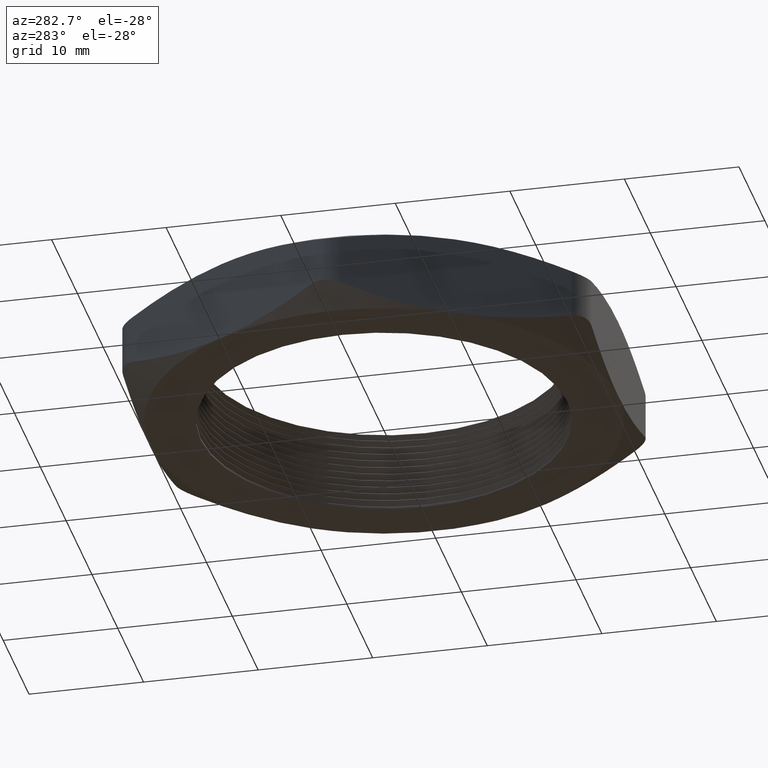
[diagram: clean part render]
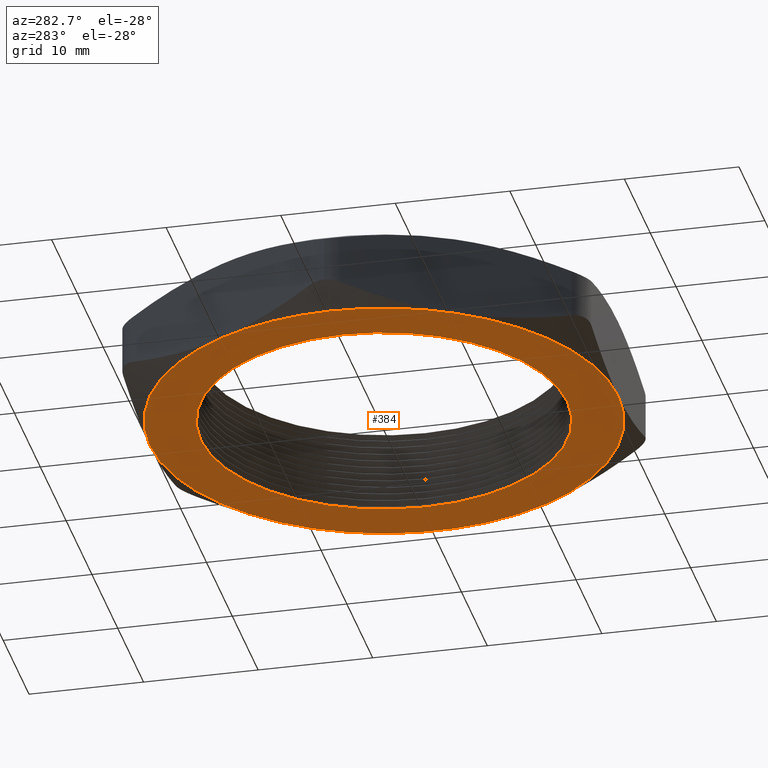
[diagram: same view with one face highlighted and labeled with its STEP entity id]
A machine part, auxiliary view. The second image highlights one B-rep face of the part: STEP entity #384.
In plain terms, the highlighted planar face has unit normal (0, 0, -1).
Its self-contained STEP definition (entity closure, byte-faithful):
#220 = DIRECTION ( 'NONE',  ( 0.0000000000000000000, 0.0000000000000000000, -1.000000000000000000 ) ) ;
#221 = CARTESIAN_POINT ( 'NONE',  ( 0.0000000000000000000, 0.0000000000000000000, 0.0000000000000000000 ) ) ;
#222 = AXIS2_PLACEMENT_3D ( 'NONE', #221, #220, #280 ) ;
#227 = CIRCLE ( 'NONE', #222, 0.8050000000000000500 ) ;
#268 = DIRECTION ( 'NONE',  ( -1.000000000000000000, 0.0000000000000000000, 0.0000000000000000000 ) ) ;
#269 = DIRECTION ( 'NONE',  ( 0.0000000000000000000, 0.0000000000000000000, -1.000000000000000000 ) ) ;
#270 = CARTESIAN_POINT ( 'NONE',  ( -0.4647669666976485500, 0.8050000000000002700, 0.0000000000000000000 ) ) ;
#271 = AXIS2_PLACEMENT_3D ( 'NONE', #270, #269, #268 ) ;
#272 = PLANE ( 'NONE',  #271 ) ;
#273 = FACE_OUTER_BOUND ( 'NONE', #379, .T. ) ;
#274 = FACE_BOUND ( 'NONE', #374, .T. ) ;
#280 = DIRECTION ( 'NONE',  ( -1.000000000000000000, 0.0000000000000000000, 0.0000000000000000000 ) ) ;
#289 = DIRECTION ( 'NONE',  ( -1.000000000000000000, 0.0000000000000000000, 0.0000000000000000000 ) ) ;
#290 = DIRECTION ( 'NONE',  ( 0.0000000000000000000, 0.0000000000000000000, -1.000000000000000000 ) ) ;
#291 = CARTESIAN_POINT ( 'NONE',  ( 0.0000000000000000000, 0.0000000000000000000, 0.0000000000000000000 ) ) ;
#292 = AXIS2_PLACEMENT_3D ( 'NONE', #291, #290, #289 ) ;
#293 = CIRCLE ( 'NONE', #292, 0.8050000000000001600 ) ;
#295 = DIRECTION ( 'NONE',  ( -1.000000000000000000, 0.0000000000000000000, 0.0000000000000000000 ) ) ;
#296 = DIRECTION ( 'NONE',  ( 0.0000000000000000000, 0.0000000000000000000, -1.000000000000000000 ) ) ;
#297 = AXIS2_PLACEMENT_3D ( 'NONE', #308, #296, #295 ) ;
#306 = CIRCLE ( 'NONE', #297, 0.8050000000000000500 ) ;
#308 = CARTESIAN_POINT ( 'NONE',  ( 0.0000000000000000000, 0.0000000000000000000, 0.0000000000000000000 ) ) ;
#330 = CARTESIAN_POINT ( 'NONE',  ( 1.182924880895401300E-016, 0.8050000000000002700, 0.0000000000000000000 ) ) ;
#362 = ORIENTED_EDGE ( 'NONE', *, *, #2398, .T. ) ;
#364 = ORIENTED_EDGE ( 'NONE', *, *, #2367, .T. ) ;
#374 = EDGE_LOOP ( 'NONE', ( #364, #362 ) ) ;
#377 = EDGE_CURVE ( 'NONE', #2560, #2429, #227, .T. ) ;
#378 = ORIENTED_EDGE ( 'NONE', *, *, #377, .T. ) ;
#379 = EDGE_LOOP ( 'NONE', ( #378, #395, #399, #396, #398, #2580, #2675 ) ) ;
#384 = ADVANCED_FACE ( 'NONE', ( #274, #273 ), #272, .T. ) ;
#395 = ORIENTED_EDGE ( 'NONE', *, *, #2428, .T. ) ;
#396 = ORIENTED_EDGE ( 'NONE', *, *, #397, .T. ) ;
#397 = EDGE_CURVE ( 'NONE', #406, #2575, #306, .T. ) ;
#398 = ORIENTED_EDGE ( 'NONE', *, *, #2579, .T. ) ;
#399 = ORIENTED_EDGE ( 'NONE', *, *, #400, .T. ) ;
#400 = EDGE_CURVE ( 'NONE', #2430, #406, #293, .T. ) ;
#406 = VERTEX_POINT ( 'NONE', #330 ) ;
#449 = VERTEX_POINT ( 'NONE', #576 ) ;
#576 = CARTESIAN_POINT ( 'NONE',  ( 0.6971504500464732500, -0.4025000000000001400, 0.0000000000000000000 ) ) ;
#1265 = CARTESIAN_POINT ( 'NONE',  ( -0.6300000000000000000, 0.0000000000000000000, 0.0000000000000000000 ) ) ;
#1266 = DIRECTION ( 'NONE',  ( 1.000000000000000000, 0.0000000000000000000, 0.0000000000000000000 ) ) ;
#1267 = DIRECTION ( 'NONE',  ( 0.0000000000000000000, 0.0000000000000000000, 1.000000000000000000 ) ) ;
#1268 = CARTESIAN_POINT ( 'NONE',  ( 0.0000000000000000000, 0.0000000000000000000, 0.0000000000000000000 ) ) ;
#1269 = AXIS2_PLACEMENT_3D ( 'NONE', #1268, #1267, #1266 ) ;
#1270 = CIRCLE ( 'NONE', #1269, 0.6300000000000000000 ) ;
#1329 = DIRECTION ( 'NONE',  ( 1.000000000000000000, 0.0000000000000000000, 0.0000000000000000000 ) ) ;
#1330 = DIRECTION ( 'NONE',  ( 0.0000000000000000000, 0.0000000000000000000, 1.000000000000000000 ) ) ;
#1331 = CARTESIAN_POINT ( 'NONE',  ( 0.0000000000000000000, 0.0000000000000000000, 0.0000000000000000000 ) ) ;
#1332 = AXIS2_PLACEMENT_3D ( 'NONE', #1331, #1330, #1329 ) ;
#1333 = CIRCLE ( 'NONE', #1332, 0.6300000000000000000 ) ;
#1389 = CARTESIAN_POINT ( 'NONE',  ( -0.6971504500464732500, 0.4025000000000001400, 0.0000000000000000000 ) ) ;
#1390 = CARTESIAN_POINT ( 'NONE',  ( -0.8050000000000000500, 0.0000000000000000000, 0.0000000000000000000 ) ) ;
#1391 = DIRECTION ( 'NONE',  ( -1.000000000000000000, 0.0000000000000000000, 0.0000000000000000000 ) ) ;
#1392 = DIRECTION ( 'NONE',  ( 0.0000000000000000000, 0.0000000000000000000, -1.000000000000000000 ) ) ;
#1393 = CARTESIAN_POINT ( 'NONE',  ( 0.0000000000000000000, 0.0000000000000000000, 0.0000000000000000000 ) ) ;
#1394 = AXIS2_PLACEMENT_3D ( 'NONE', #1393, #1392, #1391 ) ;
#1395 = CIRCLE ( 'NONE', #1394, 0.8050000000000000500 ) ;
#1619 = CARTESIAN_POINT ( 'NONE',  ( 0.6300000000000000000, 7.715274834628325400E-017, 0.0000000000000000000 ) ) ;
#1638 = CARTESIAN_POINT ( 'NONE',  ( -0.6971504500464734700, -0.4024999999999998600, 0.0000000000000000000 ) ) ;
#1649 = DIRECTION ( 'NONE',  ( -1.000000000000000000, 0.0000000000000000000, 0.0000000000000000000 ) ) ;
#1650 = DIRECTION ( 'NONE',  ( 0.0000000000000000000, 0.0000000000000000000, -1.000000000000000000 ) ) ;
#1651 = CARTESIAN_POINT ( 'NONE',  ( 0.0000000000000000000, 0.0000000000000000000, 0.0000000000000000000 ) ) ;
#1652 = AXIS2_PLACEMENT_3D ( 'NONE', #1651, #1650, #1649 ) ;
#1653 = CIRCLE ( 'NONE', #1652, 0.8050000000000000500 ) ;
#1654 = DIRECTION ( 'NONE',  ( -1.000000000000000000, 0.0000000000000000000, 0.0000000000000000000 ) ) ;
#1655 = DIRECTION ( 'NONE',  ( 0.0000000000000000000, 0.0000000000000000000, -1.000000000000000000 ) ) ;
#1656 = CARTESIAN_POINT ( 'NONE',  ( 0.0000000000000000000, 0.0000000000000000000, 0.0000000000000000000 ) ) ;
#1657 = AXIS2_PLACEMENT_3D ( 'NONE', #1656, #1655, #1654 ) ;
#1658 = CIRCLE ( 'NONE', #1657, 0.8050000000000000500 ) ;
#1671 = CARTESIAN_POINT ( 'NONE',  ( 0.6971504500464734700, 0.4024999999999998600, 0.0000000000000000000 ) ) ;
#1706 = CARTESIAN_POINT ( 'NONE',  ( 2.365849761790801500E-016, -0.8050000000000001600, 0.0000000000000000000 ) ) ;
#1897 = DIRECTION ( 'NONE',  ( -1.000000000000000000, 0.0000000000000000000, 0.0000000000000000000 ) ) ;
#1898 = DIRECTION ( 'NONE',  ( 0.0000000000000000000, 0.0000000000000000000, -1.000000000000000000 ) ) ;
#1899 = CARTESIAN_POINT ( 'NONE',  ( 0.0000000000000000000, 0.0000000000000000000, 0.0000000000000000000 ) ) ;
#1900 = AXIS2_PLACEMENT_3D ( 'NONE', #1899, #1898, #1897 ) ;
#1901 = CIRCLE ( 'NONE', #1900, 0.8050000000000000500 ) ;
#2367 = EDGE_CURVE ( 'NONE', #2368, #2564, #1270, .T. ) ;
#2368 = VERTEX_POINT ( 'NONE', #1265 ) ;
#2398 = EDGE_CURVE ( 'NONE', #2564, #2368, #1333, .T. ) ;
#2428 = EDGE_CURVE ( 'NONE', #2429, #2430, #1395, .T. ) ;
#2429 = VERTEX_POINT ( 'NONE', #1390 ) ;
#2430 = VERTEX_POINT ( 'NONE', #1389 ) ;
#2560 = VERTEX_POINT ( 'NONE', #1638 ) ;
#2564 = VERTEX_POINT ( 'NONE', #1619 ) ;
#2575 = VERTEX_POINT ( 'NONE', #1671 ) ;
#2579 = EDGE_CURVE ( 'NONE', #2575, #449, #1658, .T. ) ;
#2580 = ORIENTED_EDGE ( 'NONE', *, *, #2581, .T. ) ;
#2581 = EDGE_CURVE ( 'NONE', #449, #2606, #1653, .T. ) ;
#2606 = VERTEX_POINT ( 'NONE', #1706 ) ;
#2675 = ORIENTED_EDGE ( 'NONE', *, *, #2676, .T. ) ;
#2676 = EDGE_CURVE ( 'NONE', #2606, #2560, #1901, .T. ) ;